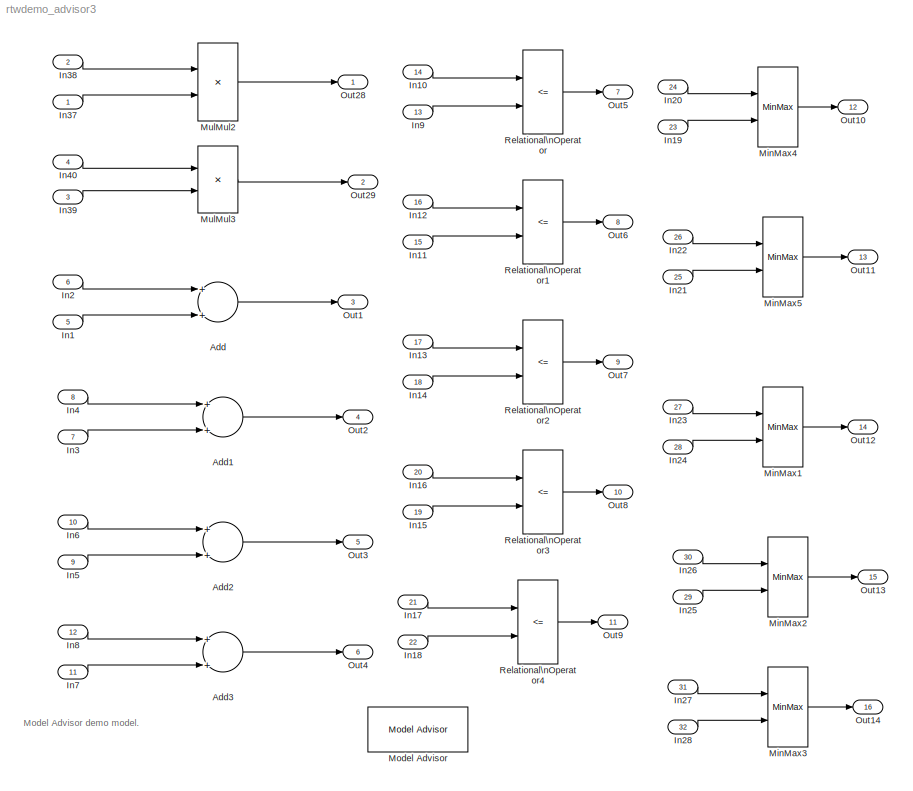
MODEL rtwdemo_advisor3
KIND model
BLOCK [Sum] Add
  InputSameDT = off
  OutDataTypeMode = Specify via dialog
  OutScaling = 2^-10
  Ports = [2, 1]
  SaturateOnIntegerOverflow = off
BLOCK [Sum] Add1
  InputSameDT = off
  OutDataType = ufix(16)
  OutDataTypeMode = Specify via dialog
  OutScaling = 2^-10
  Ports = [2, 1]
  SaturateOnIntegerOverflow = off
BLOCK [Sum] Add2
  InputSameDT = off
  OutDataType = ufix(16)
  OutDataTypeMode = Specify via dialog
  OutScaling = 2^-10
  Ports = [2, 1]
  SaturateOnIntegerOverflow = off
BLOCK [Sum] Add3
  InputSameDT = off
  OutDataType = ufix(16)
  OutDataTypeMode = Specify via dialog
  OutScaling = 2^-10
  Ports = [2, 1]
  SaturateOnIntegerOverflow = off
BLOCK [Inport] In1
  DataType = Specify via dialog
  IconDisplay = Port number
  Interpolate = off
  LatchInput = off
  OutDataType = sfix(8)
  OutScaling = 2^-5
  Port = 5
  PortDimensions = 1
  SampleTime = 1
BLOCK [Inport] In10
  DataType = Specify via dialog
  IconDisplay = Port number
  Interpolate = off
  LatchInput = off
  OutScaling = 2^-8
  Port = 14
  PortDimensions = 1
  SampleTime = 1
BLOCK [Inport] In11
  DataType = Specify via dialog
  IconDisplay = Port number
  Interpolate = off
  LatchInput = off
  OutDataType = sfix(8)
  OutScaling = 2^-5
  Port = 15
  PortDimensions = 1
  SampleTime = 1
BLOCK [Inport] In12
  DataType = Specify via dialog
  IconDisplay = Port number
  Interpolate = off
  LatchInput = off
  OutDataType = ufix(16)
  OutScaling = 2^-8
  Port = 16
  PortDimensions = 1
  SampleTime = 1
BLOCK [Inport] In13
  DataType = Specify via dialog
  IconDisplay = Port number
  Interpolate = off
  LatchInput = off
  OutDataType = sfix(8)
  OutScaling = 2^-5
  Port = 17
  PortDimensions = 1
  SampleTime = 1
BLOCK [Inport] In14
  DataType = Specify via dialog
  IconDisplay = Port number
  Interpolate = off
  LatchInput = off
  OutDataType = ufix(16)
  OutScaling = 2^-8
  Port = 18
  PortDimensions = 1
  SampleTime = 1
BLOCK [Inport] In15
  DataType = Specify via dialog
  IconDisplay = Port number
  Interpolate = off
  LatchInput = off
  OutDataType = sfix(8)
  OutScaling = 1.125*2^-5
  Port = 19
  PortDimensions = 1
  SampleTime = 1
BLOCK [Inport] In16
  DataType = Specify via dialog
  IconDisplay = Port number
  Interpolate = off
  LatchInput = off
  OutScaling = 2^-8
  Port = 20
  PortDimensions = 1
  SampleTime = 1
BLOCK [Inport] In17
  DataType = Specify via dialog
  IconDisplay = Port number
  Interpolate = off
  LatchInput = off
  OutDataType = sfix(8)
  OutScaling = 1.125*2^-5
  Port = 21
  PortDimensions = 1
  SampleTime = 1
BLOCK [Inport] In18
  DataType = Specify via dialog
  IconDisplay = Port number
  Interpolate = off
  LatchInput = off
  OutScaling = 2^-8
  Port = 22
  PortDimensions = 1
  SampleTime = 1
BLOCK [Inport] In19
  DataType = Specify via dialog
  IconDisplay = Port number
  Interpolate = off
  LatchInput = off
  OutDataType = sfix(8)
  OutScaling = 2^-5
  Port = 23
  PortDimensions = 1
  SampleTime = 1
BLOCK [Inport] In2
  DataType = Specify via dialog
  IconDisplay = Port number
  Interpolate = off
  LatchInput = off
  OutScaling = 2^-8
  Port = 6
  PortDimensions = 1
  SampleTime = 1
BLOCK [Inport] In20
  DataType = Specify via dialog
  IconDisplay = Port number
  Interpolate = off
  LatchInput = off
  OutScaling = 2^-8
  Port = 24
  PortDimensions = 1
  SampleTime = 1
BLOCK [Inport] In21
  DataType = Specify via dialog
  IconDisplay = Port number
  Interpolate = off
  LatchInput = off
  OutDataType = sfix(8)
  OutScaling = 2^-5
  Port = 25
  PortDimensions = 1
  SampleTime = 1
BLOCK [Inport] In22
  DataType = Specify via dialog
  IconDisplay = Port number
  Interpolate = off
  LatchInput = off
  OutDataType = ufix(16)
  OutScaling = 2^-8
  Port = 26
  PortDimensions = 1
  SampleTime = 1
BLOCK [Inport] In23
  DataType = Specify via dialog
  IconDisplay = Port number
  Interpolate = off
  LatchInput = off
  OutDataType = sfix(8)
  OutScaling = 2^-5
  Port = 27
  PortDimensions = 1
  SampleTime = 1
BLOCK [Inport] In24
  DataType = Specify via dialog
  IconDisplay = Port number
  Interpolate = off
  LatchInput = off
  OutDataType = ufix(16)
  OutScaling = 2^-8
  Port = 28
  PortDimensions = 1
  SampleTime = 1
BLOCK [Inport] In25
  DataType = Specify via dialog
  IconDisplay = Port number
  Interpolate = off
  LatchInput = off
  OutDataType = sfix(8)
  OutScaling = 1.125*2^-5
  Port = 29
  PortDimensions = 1
  SampleTime = 1
BLOCK [Inport] In26
  DataType = Specify via dialog
  IconDisplay = Port number
  Interpolate = off
  LatchInput = off
  OutScaling = 2^-8
  Port = 30
  PortDimensions = 1
  SampleTime = 1
BLOCK [Inport] In27
  DataType = Specify via dialog
  IconDisplay = Port number
  Interpolate = off
  LatchInput = off
  OutDataType = sfix(8)
  OutScaling = 1.125*2^-5
  Port = 31
  PortDimensions = 1
  SampleTime = 1
BLOCK [Inport] In28
  DataType = Specify via dialog
  IconDisplay = Port number
  Interpolate = off
  LatchInput = off
  OutScaling = 2^-8
  Port = 32
  PortDimensions = 1
  SampleTime = 1
BLOCK [Inport] In3
  DataType = Specify via dialog
  IconDisplay = Port number
  Interpolate = off
  LatchInput = off
  OutDataType = sfix(8)
  OutScaling = 2^-5
  Port = 7
  PortDimensions = 1
  SampleTime = 1
BLOCK [Inport] In37
  DataType = Specify via dialog
  IconDisplay = Port number
  Interpolate = off
  LatchInput = off
  OutScaling = 1.375*2^-10
  Port = 1
  PortDimensions = 1
  SampleTime = 1
BLOCK [Inport] In38
  DataType = Specify via dialog
  IconDisplay = Port number
  Interpolate = off
  LatchInput = off
  OutScaling = 1.25 * 2^-10
  Port = 2
  PortDimensions = 1
  SampleTime = 1
BLOCK [Inport] In39
  DataType = Specify via dialog
  IconDisplay = Port number
  Interpolate = off
  LatchInput = off
  OutScaling = 2^-10
  Port = 3
  PortDimensions = 1
  SampleTime = 1
BLOCK [Inport] In4
  DataType = Specify via dialog
  IconDisplay = Port number
  Interpolate = off
  LatchInput = off
  OutDataType = ufix(8)
  OutScaling = 2^-8
  Port = 8
  PortDimensions = 1
  SampleTime = 1
BLOCK [Inport] In40
  DataType = Specify via dialog
  IconDisplay = Port number
  Interpolate = off
  LatchInput = off
  OutScaling = [2^-10 1]
  Port = 4
  PortDimensions = 1
  SampleTime = 1
BLOCK [Inport] In5
  DataType = Specify via dialog
  IconDisplay = Port number
  Interpolate = off
  LatchInput = off
  OutDataType = sfix(8)
  OutScaling = [2^-5  6]
  Port = 9
  PortDimensions = 1
  SampleTime = 1
BLOCK [Inport] In6
  DataType = Specify via dialog
  IconDisplay = Port number
  Interpolate = off
  LatchInput = off
  OutDataType = ufix(8)
  OutScaling = 2^-8
  Port = 10
  PortDimensions = 1
  SampleTime = 1
BLOCK [Inport] In7
  DataType = Specify via dialog
  IconDisplay = Port number
  Interpolate = off
  LatchInput = off
  OutDataType = sfix(8)
  OutScaling = 1.5*2^-5
  Port = 11
  PortDimensions = 1
  SampleTime = 1
BLOCK [Inport] In8
  DataType = Specify via dialog
  IconDisplay = Port number
  Interpolate = off
  LatchInput = off
  OutDataType = ufix(8)
  OutScaling = 2^-8
  Port = 12
  PortDimensions = 1
  SampleTime = 1
BLOCK [Inport] In9
  DataType = Specify via dialog
  IconDisplay = Port number
  Interpolate = off
  LatchInput = off
  OutDataType = sfix(8)
  OutScaling = 2^-5
  Port = 13
  PortDimensions = 1
  SampleTime = 1
BLOCK [MinMax] MinMax1
  Function = min
  InputSameDT = off
  Inputs = 2
  OutScaling = 2^-10
  Ports = [2, 1]
  SaturateOnIntegerOverflow = off
  ZeroCross = off
BLOCK [MinMax] MinMax2
  Function = min
  InputSameDT = off
  Inputs = 2
  OutScaling = 2^-10
  Ports = [2, 1]
  SaturateOnIntegerOverflow = off
  ZeroCross = off
BLOCK [MinMax] MinMax3
  Function = min
  InputSameDT = off
  Inputs = 2
  OutScaling = 2^-10
  Ports = [2, 1]
  SaturateOnIntegerOverflow = off
  ZeroCross = off
BLOCK [MinMax] MinMax4
  Function = min
  InputSameDT = off
  Inputs = 2
  OutScaling = 2^-10
  Ports = [2, 1]
  SaturateOnIntegerOverflow = off
  ZeroCross = off
BLOCK [MinMax] MinMax5
  Function = min
  InputSameDT = off
  Inputs = 2
  OutScaling = 2^-10
  Ports = [2, 1]
  SaturateOnIntegerOverflow = off
  ZeroCross = off
BLOCK [Reference] Model Advisor  REF=rtwdemowidgets/Model Advisor
  Ports = []
  ShowPortLabels = on
  SourceBlock = rtwdemowidgets/Model Advisor
  attrib_overrides = {}
BLOCK [Product] MulMul2
  InputSameDT = off
  OutDataTypeMode = Specify via dialog
  OutScaling = 1.5*2^-10
  Ports = [2, 1]
  RndMeth = Floor
  SaturateOnIntegerOverflow = off
BLOCK [Product] MulMul3
  InputSameDT = off
  OutDataTypeMode = Specify via dialog
  OutScaling = 2^-10
  Ports = [2, 1]
  RndMeth = Floor
  SaturateOnIntegerOverflow = off
BLOCK [Outport] Out1
  BusOutputAsStruct = off
  IconDisplay = Port number
  Port = 3
BLOCK [Outport] Out10
  BusOutputAsStruct = off
  IconDisplay = Port number
  Port = 12
BLOCK [Outport] Out11
  BusOutputAsStruct = off
  IconDisplay = Port number
  Port = 13
BLOCK [Outport] Out12
  BusOutputAsStruct = off
  IconDisplay = Port number
  Port = 14
BLOCK [Outport] Out13
  BusOutputAsStruct = off
  IconDisplay = Port number
  Port = 15
BLOCK [Outport] Out14
  BusOutputAsStruct = off
  IconDisplay = Port number
  Port = 16
BLOCK [Outport] Out2
  BusOutputAsStruct = off
  IconDisplay = Port number
  Port = 4
BLOCK [Outport] Out28
  BusOutputAsStruct = off
  IconDisplay = Port number
BLOCK [Outport] Out29
  BusOutputAsStruct = off
  IconDisplay = Port number
  Port = 2
BLOCK [Outport] Out3
  BusOutputAsStruct = off
  IconDisplay = Port number
  Port = 5
BLOCK [Outport] Out4
  BusOutputAsStruct = off
  IconDisplay = Port number
  Port = 6
BLOCK [Outport] Out5
  BusOutputAsStruct = off
  IconDisplay = Port number
  Port = 7
BLOCK [Outport] Out6
  BusOutputAsStruct = off
  IconDisplay = Port number
  Port = 8
BLOCK [Outport] Out7
  BusOutputAsStruct = off
  IconDisplay = Port number
  Port = 9
BLOCK [Outport] Out8
  BusOutputAsStruct = off
  IconDisplay = Port number
  Port = 10
BLOCK [Outport] Out9
  BusOutputAsStruct = off
  IconDisplay = Port number
  Port = 11
BLOCK [RelationalOperator] Relational\nOperator
  InputSameDT = off
  LogicOutDataTypeMode = Specify via dialog
  Operator = <=
  ZeroCross = off
BLOCK [RelationalOperator] Relational\nOperator1
  InputSameDT = off
  LogicOutDataTypeMode = Specify via dialog
  Operator = <=
  ZeroCross = off
BLOCK [RelationalOperator] Relational\nOperator2
  InputSameDT = off
  LogicOutDataTypeMode = Specify via dialog
  Operator = <=
  ZeroCross = off
BLOCK [RelationalOperator] Relational\nOperator3
  InputSameDT = off
  LogicOutDataTypeMode = Specify via dialog
  Operator = <=
  ZeroCross = off
BLOCK [RelationalOperator] Relational\nOperator4
  InputSameDT = off
  LogicOutDataTypeMode = Specify via dialog
  Operator = <=
  ZeroCross = off
ANNOTATION (root): Model Advisor demo model.
LINE Add1:1 -> Out2:1
LINE Add2:1 -> Out3:1
LINE Add3:1 -> Out4:1
LINE Add:1 -> Out1:1
LINE In10:1 -> Relational\nOperator:1
LINE In11:1 -> Relational\nOperator1:2
LINE In12:1 -> Relational\nOperator1:1
LINE In13:1 -> Relational\nOperator2:1
LINE In14:1 -> Relational\nOperator2:2
LINE In15:1 -> Relational\nOperator3:2
LINE In16:1 -> Relational\nOperator3:1
LINE In17:1 -> Relational\nOperator4:1
LINE In18:1 -> Relational\nOperator4:2
LINE In19:1 -> MinMax4:2
LINE In1:1 -> Add:2
LINE In20:1 -> MinMax4:1
LINE In21:1 -> MinMax5:2
LINE In22:1 -> MinMax5:1
LINE In23:1 -> MinMax1:1
LINE In24:1 -> MinMax1:2
LINE In25:1 -> MinMax2:2
LINE In26:1 -> MinMax2:1
LINE In27:1 -> MinMax3:1
LINE In28:1 -> MinMax3:2
LINE In2:1 -> Add:1
LINE In37:1 -> MulMul2:2
LINE In38:1 -> MulMul2:1
LINE In39:1 -> MulMul3:2
LINE In3:1 -> Add1:2
LINE In40:1 -> MulMul3:1
LINE In4:1 -> Add1:1
LINE In5:1 -> Add2:2
LINE In6:1 -> Add2:1
LINE In7:1 -> Add3:2
LINE In8:1 -> Add3:1
LINE In9:1 -> Relational\nOperator:2
LINE MinMax1:1 -> Out12:1
LINE MinMax2:1 -> Out13:1
LINE MinMax3:1 -> Out14:1
LINE MinMax4:1 -> Out10:1
LINE MinMax5:1 -> Out11:1
LINE MulMul2:1 -> Out28:1
LINE MulMul3:1 -> Out29:1
LINE Relational\nOperator1:1 -> Out6:1
LINE Relational\nOperator2:1 -> Out7:1
LINE Relational\nOperator3:1 -> Out8:1
LINE Relational\nOperator4:1 -> Out9:1
LINE Relational\nOperator:1 -> Out5:1
